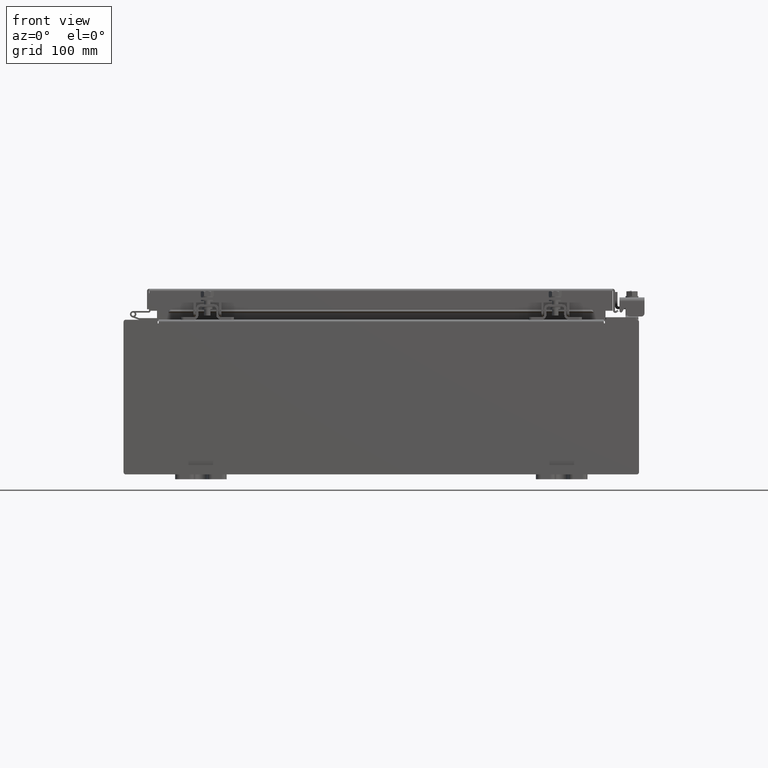
[diagram: clean part render]
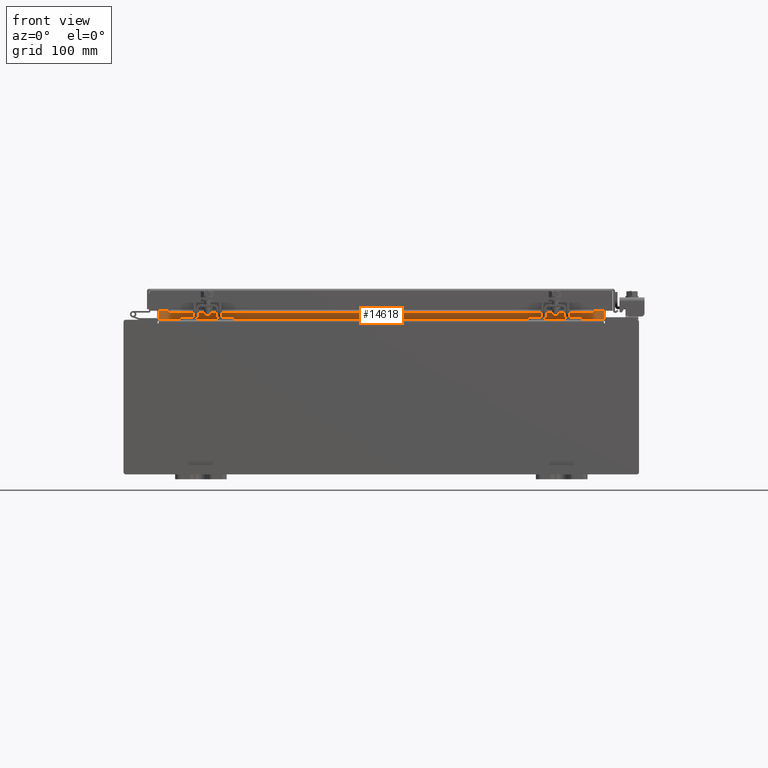
[diagram: same view with one face highlighted and labeled with its STEP entity id]
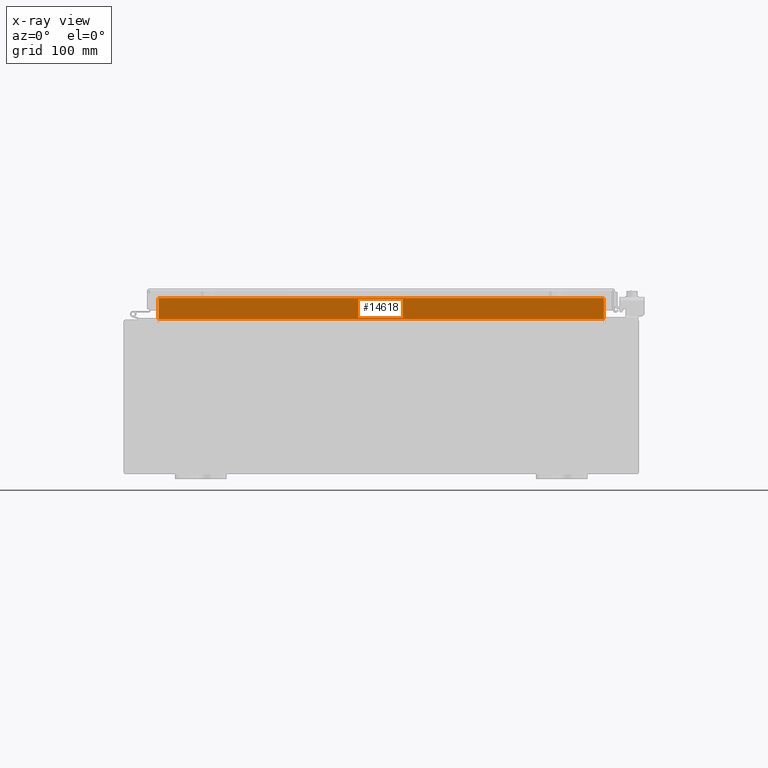
[diagram: x-ray of the same camera — body ghosted, the highlighted face saturated]
A machine part, front view. The second image highlights one B-rep face of the part: STEP entity #14618.
The next image is the same camera in x-ray: the body ghosted, the highlighted face saturated — about 0% of this face is hidden behind the body in this view.
In plain terms, the highlighted planar face has unit normal (0, -1, 0).
Its self-contained STEP definition (entity closure, byte-faithful):
#238 = CARTESIAN_POINT ( 'NONE',  ( 8.637200000000000000, -1.300299999999999800, 3.837600000000005000 ) ) ;
#786 = FACE_OUTER_BOUND ( 'NONE', #7198, .T. ) ;
#1453 = VECTOR ( 'NONE', #19539, 39.37007874015748100 ) ;
#1517 = CARTESIAN_POINT ( 'NONE',  ( -8.637200000000000000, -1.300299999999999800, 3.000000000000005300 ) ) ;
#1788 = EDGE_CURVE ( 'NONE', #16635, #5497, #6789, .T. ) ;
#2725 = CARTESIAN_POINT ( 'NONE',  ( 8.637199999999996400, -1.300299999999999800, 3.013000000000004800 ) ) ;
#2789 = ORIENTED_EDGE ( 'NONE', *, *, #4703, .F. ) ;
#2882 = LINE ( 'NONE', #26100, #12920 ) ;
#3474 = VERTEX_POINT ( 'NONE', #238 ) ;
#4001 = EDGE_CURVE ( 'NONE', #5497, #17878, #10913, .T. ) ;
#4703 = EDGE_CURVE ( 'NONE', #3474, #16635, #11185, .T. ) ;
#5293 = PLANE ( 'NONE',  #12321 ) ;
#5497 = VERTEX_POINT ( 'NONE', #10725 ) ;
#6043 = DIRECTION ( 'NONE',  ( -0.0000000000000000000, -0.0000000000000000000, 1.000000000000000000 ) ) ;
#6789 = LINE ( 'NONE', #1517, #1453 ) ;
#7198 = EDGE_LOOP ( 'NONE', ( #9067, #2789, #18185, #9589 ) ) ;
#7289 = CARTESIAN_POINT ( 'NONE',  ( 0.0000000000000000000, -1.300299999999999800, 0.0000000000000000000 ) ) ;
#9067 = ORIENTED_EDGE ( 'NONE', *, *, #1788, .F. ) ;
#9293 = DIRECTION ( 'NONE',  ( 0.0000000000000000000, -0.0000000000000000000, 1.000000000000000000 ) ) ;
#9448 = DIRECTION ( 'NONE',  ( 1.000000000000000000, 0.0000000000000000000, -6.325772226333218300E-017 ) ) ;
#9589 = ORIENTED_EDGE ( 'NONE', *, *, #4001, .F. ) ;
#9926 = EDGE_CURVE ( 'NONE', #17878, #3474, #2882, .T. ) ;
#10725 = CARTESIAN_POINT ( 'NONE',  ( -8.637200000000000000, -1.300299999999999800, 3.013000000000004800 ) ) ;
#10913 = LINE ( 'NONE', #21507, #15620 ) ;
#11185 = LINE ( 'NONE', #23267, #21903 ) ;
#12321 = AXIS2_PLACEMENT_3D ( 'NONE', #7289, #21368, #9293 ) ;
#12920 = VECTOR ( 'NONE', #6043, 39.37007874015748100 ) ;
#14618 = ADVANCED_FACE ( 'NONE', ( #786 ), #5293, .T. ) ;
#15620 = VECTOR ( 'NONE', #9448, 39.37007874015748100 ) ;
#16635 = VERTEX_POINT ( 'NONE', #17499 ) ;
#17499 = CARTESIAN_POINT ( 'NONE',  ( -8.637200000000000000, -1.300300000000000000, 3.837600000000005000 ) ) ;
#17878 = VERTEX_POINT ( 'NONE', #2725 ) ;
#18185 = ORIENTED_EDGE ( 'NONE', *, *, #9926, .F. ) ;
#19199 = DIRECTION ( 'NONE',  ( -1.000000000000000000, -0.0000000000000000000, -0.0000000000000000000 ) ) ;
#19539 = DIRECTION ( 'NONE',  ( -0.0000000000000000000, -0.0000000000000000000, -1.000000000000000000 ) ) ;
#21368 = DIRECTION ( 'NONE',  ( 0.0000000000000000000, 1.000000000000000000, 0.0000000000000000000 ) ) ;
#21507 = CARTESIAN_POINT ( 'NONE',  ( -8.637200000000000000, -1.300299999999999800, 3.013000000000005200 ) ) ;
#21903 = VECTOR ( 'NONE', #19199, 39.37007874015748100 ) ;
#23267 = CARTESIAN_POINT ( 'NONE',  ( 8.637200000000000000, -1.300300000000000000, 3.837600000000005000 ) ) ;
#26100 = CARTESIAN_POINT ( 'NONE',  ( 8.637200000000000000, -1.300299999999999800, 3.925300000000005300 ) ) ;